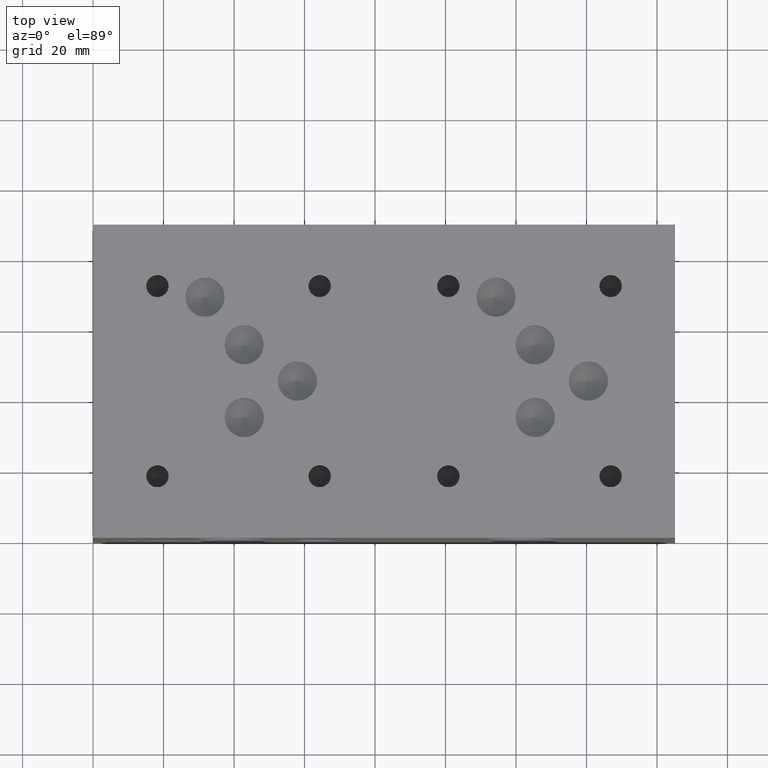
[diagram: clean part render]
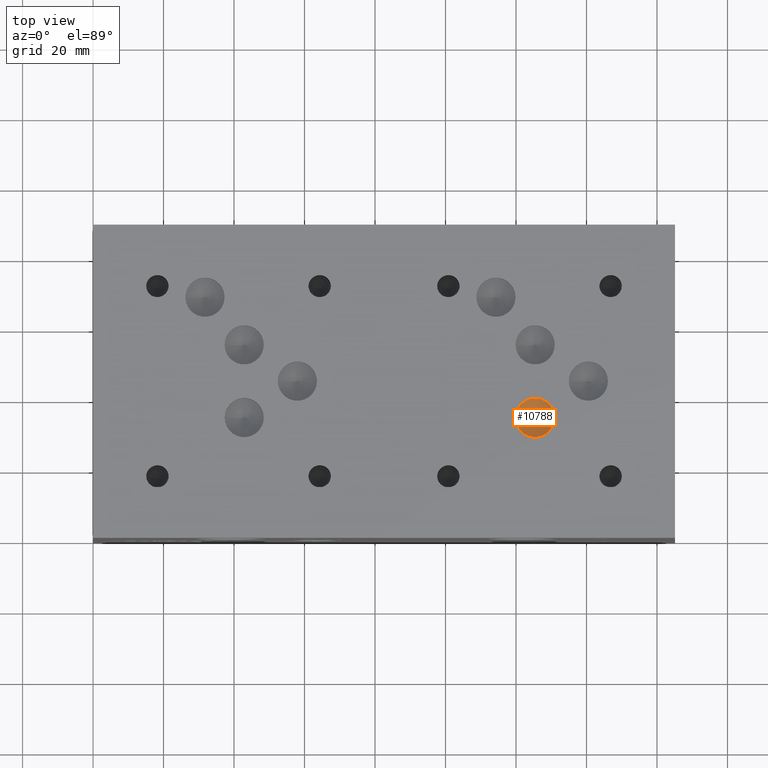
[diagram: same view with one face highlighted and labeled with its STEP entity id]
A machine part, top view. The second image highlights one B-rep face of the part: STEP entity #10788.
In plain terms, the highlighted conical surface has half-angle 60 deg.
Its self-contained STEP definition (entity closure, byte-faithful):
#78=CONICAL_SURFACE('',#11302,2.7813,1.0471975511966);
#192=CIRCLE('',#11303,5.5626);
#193=CIRCLE('',#11304,5.5626);
#1322=FACE_OUTER_BOUND('',#1933,.T.);
#1933=EDGE_LOOP('',(#9288,#9289,#9290,#9291));
#2980=LINE('',#18446,#3990);
#3990=VECTOR('',#13307,2.7813);
#4976=VERTEX_POINT('',#18442);
#4977=VERTEX_POINT('',#18443);
#4978=VERTEX_POINT('',#18445);
#6445=EDGE_CURVE('',#4976,#4977,#192,.T.);
#6446=EDGE_CURVE('',#4977,#4978,#2980,.T.);
#6447=EDGE_CURVE('',#4977,#4976,#193,.T.);
#9288=ORIENTED_EDGE('',*,*,#6445,.T.);
#9289=ORIENTED_EDGE('',*,*,#6446,.T.);
#9290=ORIENTED_EDGE('',*,*,#6446,.F.);
#9291=ORIENTED_EDGE('',*,*,#6447,.T.);
#10788=ADVANCED_FACE('',(#1322),#78,.F.);
#11302=AXIS2_PLACEMENT_3D('',#18441,#13303,#13304);
#11303=AXIS2_PLACEMENT_3D('',#18444,#13305,#13306);
#11304=AXIS2_PLACEMENT_3D('',#18447,#13308,#13309);
#13303=DIRECTION('center_axis',(0.,0.,1.));
#13304=DIRECTION('ref_axis',(1.,0.,0.));
#13305=DIRECTION('center_axis',(0.,0.,1.));
#13306=DIRECTION('ref_axis',(1.,0.,0.));
#13307=DIRECTION('',(0.866025403784439,1.06057523872491E-16,-0.5));
#13308=DIRECTION('center_axis',(0.,0.,1.));
#13309=DIRECTION('ref_axis',(1.,0.,0.));
#18441=CARTESIAN_POINT('Origin',(125.4252,34.1376,84.0826456963029));
#18442=CARTESIAN_POINT('',(130.9878,34.1376,85.68843));
#18443=CARTESIAN_POINT('',(119.8626,34.1376,85.68843));
#18444=CARTESIAN_POINT('Origin',(125.4252,34.1376,85.68843));
#18445=CARTESIAN_POINT('',(125.4252,34.1376,82.4768613926058));
#18446=CARTESIAN_POINT('',(122.6439,34.1376,84.0826456963029));
#18447=CARTESIAN_POINT('Origin',(125.4252,34.1376,85.68843));